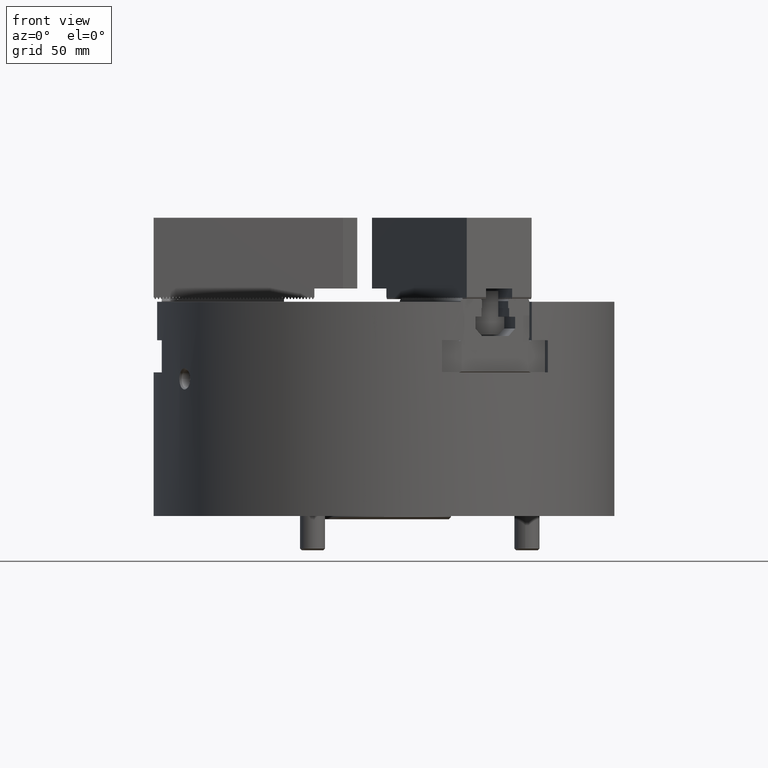
[diagram: clean part render]
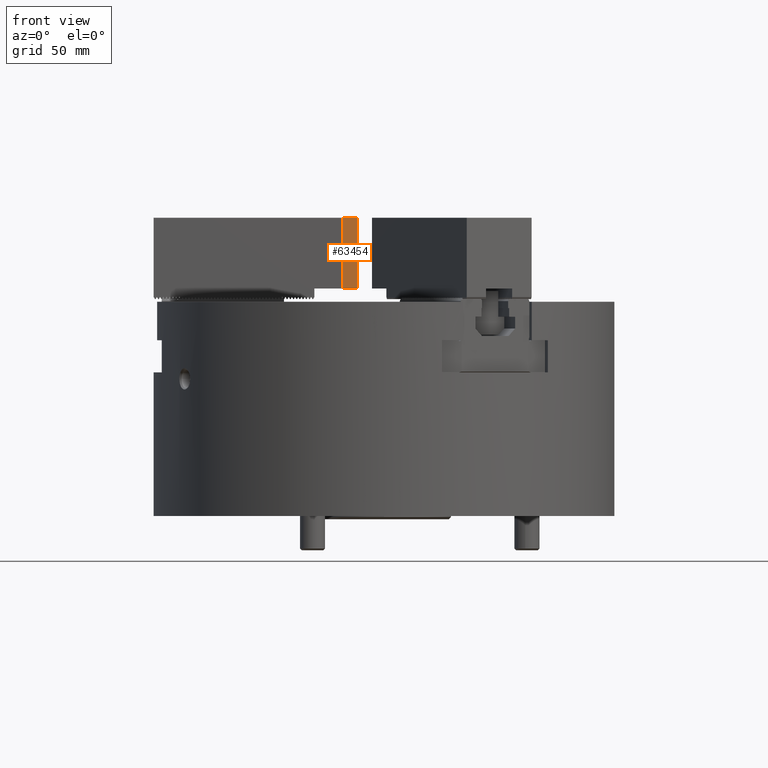
[diagram: same view with one face highlighted and labeled with its STEP entity id]
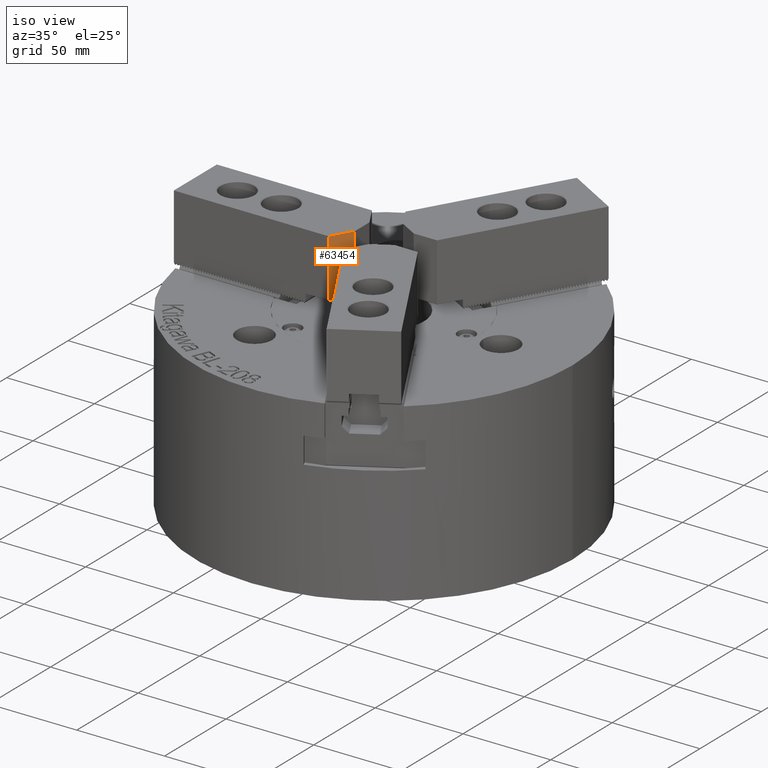
[diagram: same view with one face highlighted and labeled with its STEP entity id]
A machine part, front view. The second image highlights one B-rep face of the part: STEP entity #63454.
A second angle (iso view) of the same face is appended — the face is thin or edge-on in the first view.
In plain terms, the highlighted planar face has unit normal (-0.866, 0.5, 0).
Its self-contained STEP definition (entity closure, byte-faithful):
#11586=ORIENTED_EDGE('',*,*,#26914,.F.);
#11587=ORIENTED_EDGE('',*,*,#26906,.F.);
#11588=ORIENTED_EDGE('',*,*,#26900,.T.);
#11589=ORIENTED_EDGE('',*,*,#26905,.T.);
#26900=EDGE_CURVE('',#34938,#34940,#41657,.T.);
#26905=EDGE_CURVE('',#34940,#34944,#41662,.T.);
#26906=EDGE_CURVE('',#34938,#34945,#41663,.T.);
#26914=EDGE_CURVE('',#34945,#34944,#41671,.T.);
#34938=VERTEX_POINT('',#98753);
#34940=VERTEX_POINT('',#98757);
#34944=VERTEX_POINT('',#98767);
#34945=VERTEX_POINT('',#98771);
#41657=LINE('',#98758,#49657);
#41662=LINE('',#98768,#49662);
#41663=LINE('',#98770,#49663);
#41671=LINE('',#98784,#49671);
#49657=VECTOR('',#77909,1000.);
#49662=VECTOR('',#77916,1000.);
#49663=VECTOR('',#77919,1000.);
#49671=VECTOR('',#77931,1000.);
#55038=EDGE_LOOP('',(#11586,#11587,#11588,#11589));
#58252=FACE_BOUND('',#55038,.T.);
#60903=PLANE('',#67149);
#63454=ADVANCED_FACE('',(#58252),#60903,.F.);
#67149=AXIS2_PLACEMENT_3D('',#98783,#77929,#77930);
#77909=DIRECTION('',(0.,0.,1.));
#77916=DIRECTION('',(-0.5,-0.866025403784438,0.));
#77919=DIRECTION('',(-0.5,-0.866025403784439,0.));
#77929=DIRECTION('',(-0.866025403784439,0.5,0.));
#77930=DIRECTION('',(-0.5,-0.866025403784439,0.));
#77931=DIRECTION('',(0.,0.,1.));
#98753=CARTESIAN_POINT('',(-12.5000000000001,-5.99999999999998,6.1999999999991));
#98757=CARTESIAN_POINT('',(-12.5000000000001,-5.99999999999998,39.1999999999991));
#98758=CARTESIAN_POINT('',(-12.5000000000001,-5.99999999999998,-8.8000000000009));
#98767=CARTESIAN_POINT('',(-19.1395280956808,-17.5,39.1999999999991));
#98768=CARTESIAN_POINT('',(-12.5000000000001,-5.99999999999998,39.1999999999991));
#98770=CARTESIAN_POINT('',(-30.6208348754013,-37.3862066797609,6.1999999999991));
#98771=CARTESIAN_POINT('',(-19.1395280956808,-17.5,6.1999999999991));
#98783=CARTESIAN_POINT('',(-12.5000000000001,-5.99999999999998,-8.8000000000009));
#98784=CARTESIAN_POINT('',(-19.1395280956808,-17.5,-8.8000000000009));